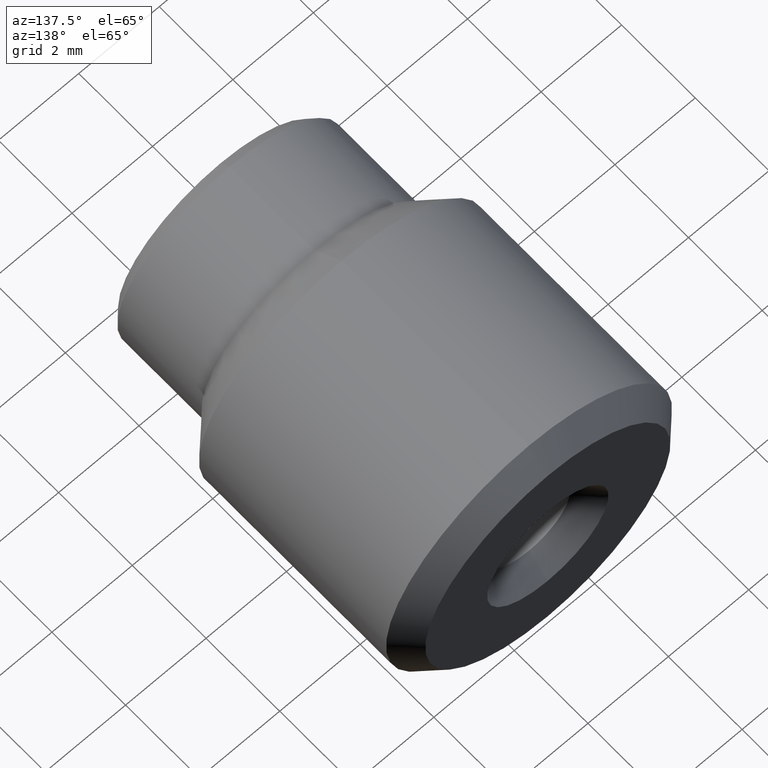
[diagram: clean part render]
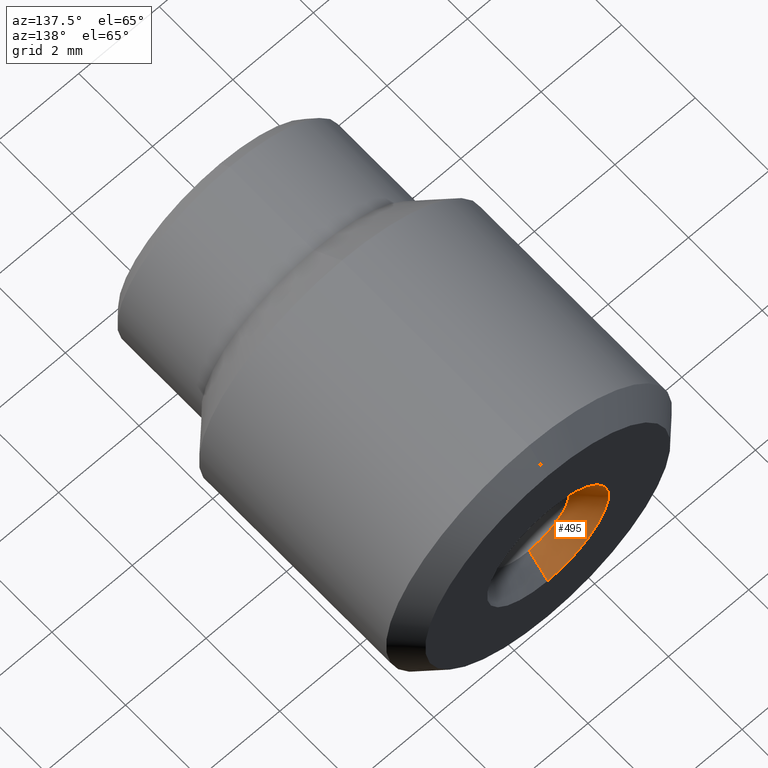
[diagram: same view with one face highlighted and labeled with its STEP entity id]
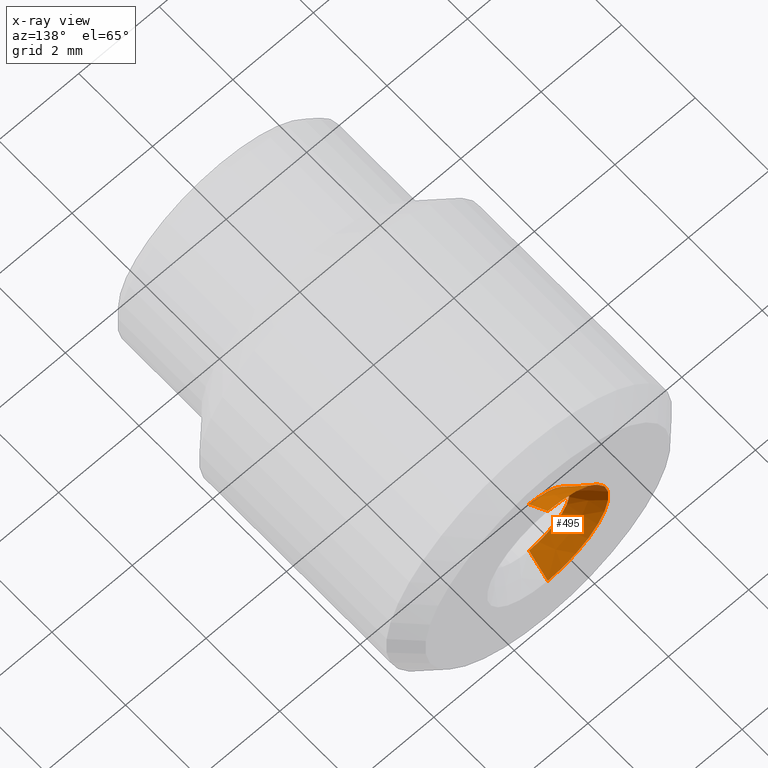
[diagram: x-ray of the same camera — body ghosted, the highlighted face saturated]
A machine part, auxiliary view. The second image highlights one B-rep face of the part: STEP entity #495.
The next image is the same camera in x-ray: the body ghosted, the highlighted face saturated — about 1% of this face is hidden behind the body in this view.
In plain terms, the highlighted conical surface has half-angle 45 deg.
Its self-contained STEP definition (entity closure, byte-faithful):
#26 = DIRECTION ( 'NONE',  ( -0.0000000000000000000, 1.000000000000000000, -0.0000000000000000000 ) ) ;
#56 = DIRECTION ( 'NONE',  ( -0.0000000000000000000, 1.000000000000000000, -0.0000000000000000000 ) ) ;
#59 = CARTESIAN_POINT ( 'NONE',  ( -0.8936271735354411900, 0.6358041395763715000, 0.09899134850949717300 ) ) ;
#68 = DIRECTION ( 'NONE',  ( -0.0000000000000000000, 1.000000000000000000, -0.0000000000000000000 ) ) ;
#91 = DIRECTION ( 'NONE',  ( 0.0000000000000000000, 0.0000000000000000000, 1.000000000000000000 ) ) ;
#109 = CARTESIAN_POINT ( 'NONE',  ( -0.8936271735354411900, 0.6158041395763715900, 0.1584913485094971700 ) ) ;
#122 = CARTESIAN_POINT ( 'NONE',  ( -0.8936271735354411900, 0.6358041395763715000, 0.1584913485094971700 ) ) ;
#128 = DIRECTION ( 'NONE',  ( 8.659560562354935300E-017, 0.7071067811865473500, -0.7071067811865476800 ) ) ;
#200 = DIRECTION ( 'NONE',  ( 0.0000000000000000000, 0.7071067811865473500, 0.7071067811865476800 ) ) ;
#203 = DIRECTION ( 'NONE',  ( 0.0000000000000000000, 0.0000000000000000000, 1.000000000000000000 ) ) ;
#220 = CARTESIAN_POINT ( 'NONE',  ( -0.8936271735354411900, 0.6358041395763715000, 0.1584913485094971700 ) ) ;
#221 = CARTESIAN_POINT ( 'NONE',  ( -0.8936271735354411900, 0.6158041395763715900, 0.1189913485094971600 ) ) ;
#263 = CARTESIAN_POINT ( 'NONE',  ( -0.8936271735354411900, 0.6158041395763715900, 0.1979913485094972100 ) ) ;
#270 = CARTESIAN_POINT ( 'NONE',  ( -0.8936271735354411900, 0.6358041395763715000, 0.2179913485094972000 ) ) ;
#299 = DIRECTION ( 'NONE',  ( 0.0000000000000000000, 0.0000000000000000000, 1.000000000000000000 ) ) ;
#306 = CARTESIAN_POINT ( 'NONE',  ( -0.8936271735354411900, 0.6358041395763715000, 0.2179913485094972000 ) ) ;
#357 = CIRCLE ( 'NONE', #359, 0.03950000000000001400 ) ;
#359 = AXIS2_PLACEMENT_3D ( 'NONE', #109, #68, #299 ) ;
#367 = VECTOR ( 'NONE', #200, 39.37007874015748100 ) ;
#369 = VECTOR ( 'NONE', #128, 39.37007874015748100 ) ;
#375 = CIRCLE ( 'NONE', #393, 0.05950000000000000400 ) ;
#376 = AXIS2_PLACEMENT_3D ( 'NONE', #220, #26, #91 ) ;
#377 = CONICAL_SURFACE ( 'NONE', #376, 0.05950000000000000400, 0.7853981633974485000 ) ;
#393 = AXIS2_PLACEMENT_3D ( 'NONE', #122, #56, #203 ) ;
#479 = EDGE_CURVE ( 'NONE', #775, #651, #357, .T. ) ;
#485 = EDGE_CURVE ( 'NONE', #651, #710, #666, .T. ) ;
#487 = EDGE_CURVE ( 'NONE', #775, #790, #686, .T. ) ;
#495 = ADVANCED_FACE ( 'NONE', ( #660 ), #377, .F. ) ;
#499 = EDGE_CURVE ( 'NONE', #790, #710, #375, .T. ) ;
#636 = CARTESIAN_POINT ( 'NONE',  ( -0.8936271735354411900, 0.6358041395763715000, 0.09899134850949717300 ) ) ;
#651 = VERTEX_POINT ( 'NONE', #263 ) ;
#652 = EDGE_LOOP ( 'NONE', ( #748, #746, #797, #810 ) ) ;
#660 = FACE_OUTER_BOUND ( 'NONE', #652, .T. ) ;
#666 = LINE ( 'NONE', #270, #367 ) ;
#686 = LINE ( 'NONE', #59, #369 ) ;
#710 = VERTEX_POINT ( 'NONE', #306 ) ;
#746 = ORIENTED_EDGE ( 'NONE', *, *, #487, .T. ) ;
#748 = ORIENTED_EDGE ( 'NONE', *, *, #479, .F. ) ;
#775 = VERTEX_POINT ( 'NONE', #221 ) ;
#790 = VERTEX_POINT ( 'NONE', #636 ) ;
#797 = ORIENTED_EDGE ( 'NONE', *, *, #499, .T. ) ;
#810 = ORIENTED_EDGE ( 'NONE', *, *, #485, .F. ) ;